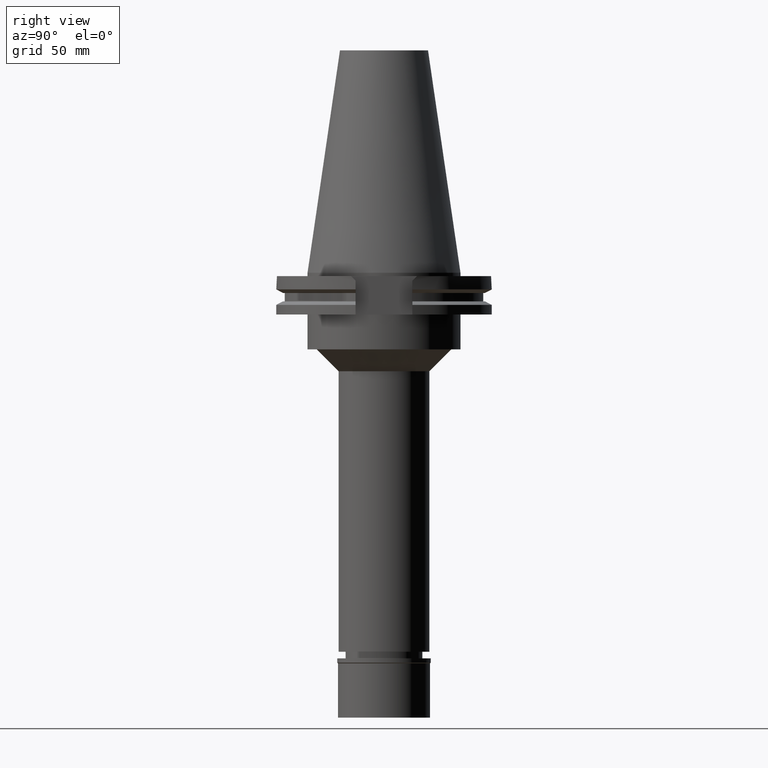
[diagram: clean part render]
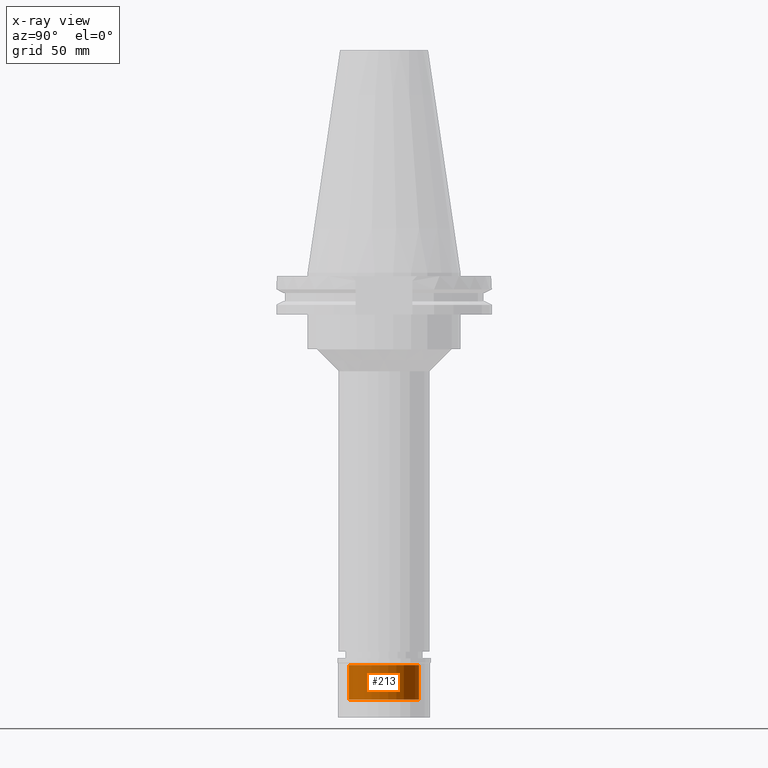
[diagram: x-ray — body ghosted, one internal face saturated and labeled with its STEP entity id]
A machine part, right view, then the same camera in x-ray: the body is ghosted and one INTERNAL B-rep face — a face not visible from any outside direction — is saturated and labeled: STEP entity #213.
In plain terms, the highlighted cylindrical surface (edge-blend (fillet) strip) has radius 16 mm, axis along (0, 0, -1).
Its self-contained STEP definition (entity closure, byte-faithful):
#213 = ADVANCED_FACE ( 'NONE', ( #2859 ), #355, .F. ) ;
#294 = EDGE_CURVE ( 'NONE', #1175, #1819, #2019, .T. ) ;
#301 = AXIS2_PLACEMENT_3D ( 'NONE', #1753, #2694, #2675 ) ;
#355 = CYLINDRICAL_SURFACE ( 'NONE', #2623, 16.00000000000000000 ) ;
#395 = LINE ( 'NONE', #460, #893 ) ;
#460 = CARTESIAN_POINT ( 'NONE',  ( 0.0000000000000000000, 16.00000000000000000, -18.89999999999999858 ) ) ;
#584 = CARTESIAN_POINT ( 'NONE',  ( 0.0000000000000000000, -16.00000000000000000, -18.89999999999999858 ) ) ;
#633 = CARTESIAN_POINT ( 'NONE',  ( 0.0000000000000000000, -16.00000000000000000, -3.100000000000000089 ) ) ;
#651 = EDGE_CURVE ( 'NONE', #3021, #1175, #1383, .T. ) ;
#847 = CARTESIAN_POINT ( 'NONE',  ( 0.0000000000000000000, 16.00000000000000000, -3.100000000000000089 ) ) ;
#870 = DIRECTION ( 'NONE',  ( 0.0000000000000000000, 0.0000000000000000000, 1.000000000000000000 ) ) ;
#893 = VECTOR ( 'NONE', #2505, 1000.000000000000000 ) ;
#1175 = VERTEX_POINT ( 'NONE', #633 ) ;
#1209 = ORIENTED_EDGE ( 'NONE', *, *, #1357, .F. ) ;
#1357 = EDGE_CURVE ( 'NONE', #2221, #1819, #395, .T. ) ;
#1383 = LINE ( 'NONE', #584, #1526 ) ;
#1526 = VECTOR ( 'NONE', #870, 1000.000000000000000 ) ;
#1557 = CARTESIAN_POINT ( 'NONE',  ( 0.0000000000000000000, 16.00000000000000000, -18.89999999999999858 ) ) ;
#1630 = CARTESIAN_POINT ( 'NONE',  ( 0.0000000000000000000, 0.0000000000000000000, -18.89999999999999858 ) ) ;
#1691 = ORIENTED_EDGE ( 'NONE', *, *, #651, .T. ) ;
#1753 = CARTESIAN_POINT ( 'NONE',  ( 0.0000000000000000000, 0.0000000000000000000, -3.100000000000000089 ) ) ;
#1805 = DIRECTION ( 'NONE',  ( 0.0000000000000000000, 0.0000000000000000000, -1.000000000000000000 ) ) ;
#1819 = VERTEX_POINT ( 'NONE', #847 ) ;
#2017 = ORIENTED_EDGE ( 'NONE', *, *, #2866, .T. ) ;
#2019 = CIRCLE ( 'NONE', #301, 16.00000000000000000 ) ;
#2103 = DIRECTION ( 'NONE',  ( 0.0000000000000000000, -1.000000000000000000, 0.0000000000000000000 ) ) ;
#2221 = VERTEX_POINT ( 'NONE', #1557 ) ;
#2388 = DIRECTION ( 'NONE',  ( 0.0000000000000000000, 0.0000000000000000000, -1.000000000000000000 ) ) ;
#2505 = DIRECTION ( 'NONE',  ( 0.0000000000000000000, 0.0000000000000000000, 1.000000000000000000 ) ) ;
#2623 = AXIS2_PLACEMENT_3D ( 'NONE', #3104, #1805, #2103 ) ;
#2675 = DIRECTION ( 'NONE',  ( 0.0000000000000000000, -1.000000000000000000, 0.0000000000000000000 ) ) ;
#2694 = DIRECTION ( 'NONE',  ( 0.0000000000000000000, 0.0000000000000000000, 1.000000000000000000 ) ) ;
#2699 = DIRECTION ( 'NONE',  ( 0.0000000000000000000, 1.000000000000000000, 0.0000000000000000000 ) ) ;
#2859 = FACE_OUTER_BOUND ( 'NONE', #2902, .T. ) ;
#2866 = EDGE_CURVE ( 'NONE', #2221, #3021, #2944, .T. ) ;
#2902 = EDGE_LOOP ( 'NONE', ( #2017, #1691, #3057, #1209 ) ) ;
#2944 = CIRCLE ( 'NONE', #3005, 16.00000000000000000 ) ;
#2965 = CARTESIAN_POINT ( 'NONE',  ( 0.0000000000000000000, -16.00000000000000000, -18.89999999999999858 ) ) ;
#3005 = AXIS2_PLACEMENT_3D ( 'NONE', #1630, #2388, #2699 ) ;
#3021 = VERTEX_POINT ( 'NONE', #2965 ) ;
#3057 = ORIENTED_EDGE ( 'NONE', *, *, #294, .T. ) ;
#3104 = CARTESIAN_POINT ( 'NONE',  ( 0.0000000000000000000, 0.0000000000000000000, 0.0000000000000000000 ) ) ;